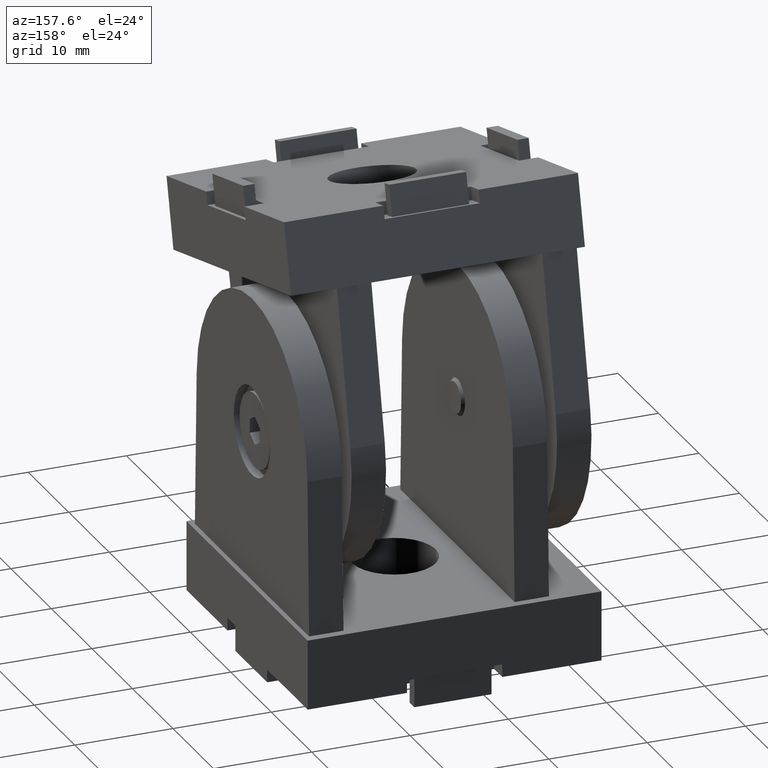
[diagram: clean part render]
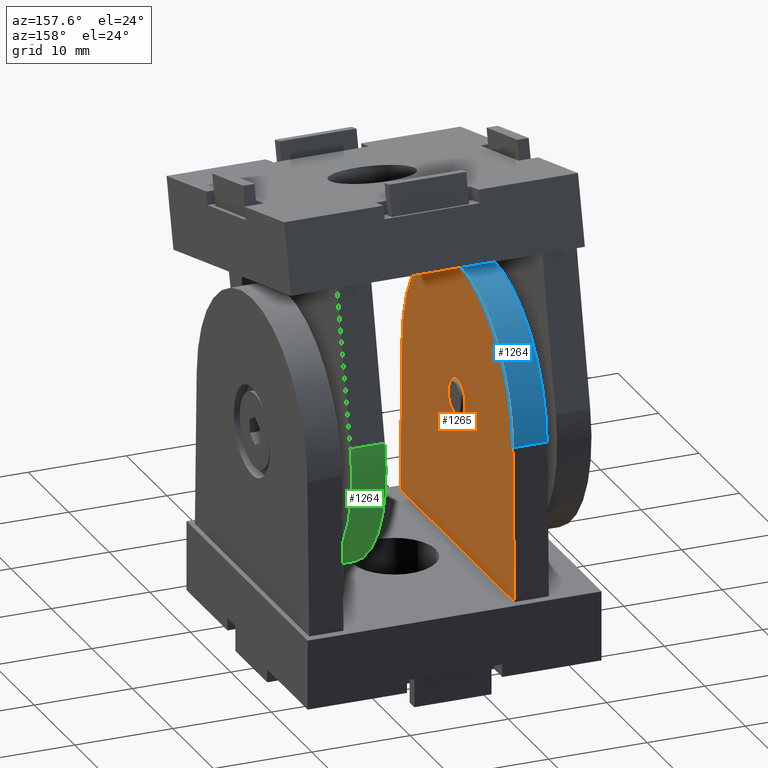
[diagram: same view with three faces highlighted in distinct colors, each labeled with its STEP entity id]
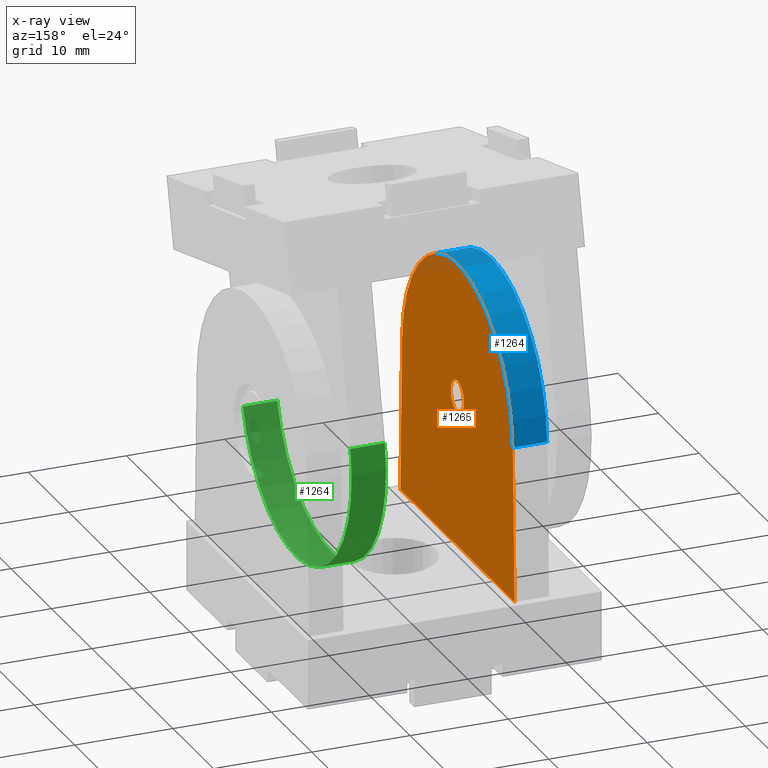
[diagram: x-ray of the same camera — body ghosted, the three highlighted faces saturated]
A machine part, auxiliary view with three faces highlighted in distinct colors.
The next image is the same camera in x-ray (body ghosted, the three faces saturated) — at least one of them is partly hidden behind the body in this view.
Their STEP definitions:

[orange] entity #1265 — the highlighted planar face has unit normal (1, 0, -0).
#157=LINE('',#1991,#297);
#161=LINE('',#2000,#301);
#163=LINE('',#2006,#303);
#297=VECTOR('',#1623,15.7054130795723);
#301=VECTOR('',#1629,15.7054130795723);
#303=VECTOR('',#1639,28.2);
#346=FACE_BOUND('',#494,.T.);
#408=FACE_OUTER_BOUND('',#493,.T.);
#493=EDGE_LOOP('',(#1044,#1045,#1046,#1047));
#494=EDGE_LOOP('',(#1048));
#532=CIRCLE('',#1302,1.621);
#538=CIRCLE('',#1353,13.675);
#551=VERTEX_POINT('',#1743);
#636=VERTEX_POINT('',#1988);
#637=VERTEX_POINT('',#1990);
#640=VERTEX_POINT('',#1997);
#641=VERTEX_POINT('',#1999);
#666=EDGE_CURVE('',#551,#551,#532,.T.);
#784=EDGE_CURVE('',#637,#636,#157,.T.);
#788=EDGE_CURVE('',#641,#640,#161,.T.);
#791=EDGE_CURVE('',#636,#641,#538,.T.);
#792=EDGE_CURVE('',#637,#640,#163,.T.);
#1044=ORIENTED_EDGE('',*,*,#791,.T.);
#1045=ORIENTED_EDGE('',*,*,#788,.T.);
#1046=ORIENTED_EDGE('',*,*,#792,.F.);
#1047=ORIENTED_EDGE('',*,*,#784,.T.);
#1048=ORIENTED_EDGE('',*,*,#666,.T.);
#1199=PLANE('',#1354);
#1265=ADVANCED_FACE('',(#408,#346),#1199,.T.);
#1302=AXIS2_PLACEMENT_3D('',#1744,#1414,#1415);
#1353=AXIS2_PLACEMENT_3D('',#2004,#1635,#1636);
#1354=AXIS2_PLACEMENT_3D('',#2005,#1637,#1638);
#1414=DIRECTION('center_axis',(-1.,0.,0.));
#1415=DIRECTION('ref_axis',(0.,-1.,0.));
#1623=DIRECTION('',(0.,-0.0273873434676063,0.999624896357523));
#1629=DIRECTION('',(0.,-0.0273873434676063,-0.999624896357523));
#1635=DIRECTION('center_axis',(1.,0.,0.));
#1636=DIRECTION('ref_axis',(0.,0.999624896357522,0.0273873434676064));
#1637=DIRECTION('center_axis',(1.,0.,0.));
#1638=DIRECTION('ref_axis',(0.,0.,-1.));
#1639=DIRECTION('',(0.,-1.,0.));
#1743=CARTESIAN_POINT('',(-6.45,1.621,22.425));
#1744=CARTESIAN_POINT('Origin',(-6.45,0.,22.425));
#1988=CARTESIAN_POINT('',(-6.45,13.6698704576891,22.7995219219195));
#1990=CARTESIAN_POINT('',(-6.45,14.1,7.1));
#1991=CARTESIAN_POINT('',(-6.45,14.1,7.1));
#1997=CARTESIAN_POINT('',(-6.45,-14.1,7.1));
#1999=CARTESIAN_POINT('',(-6.45,-13.6698704576891,22.7995219219195));
#2000=CARTESIAN_POINT('',(-6.45,-13.6698704576891,22.7995219219195));
#2004=CARTESIAN_POINT('Origin',(-6.45,0.,22.425));
#2005=CARTESIAN_POINT('Origin',(-6.45,4.01417627230578E-15,18.1896177973791));
#2006=CARTESIAN_POINT('',(-6.45,2.00708813615289E-15,7.1));

[blue] entity #1264 — the highlighted cylindrical surface (partial cylindrical patch) has radius 13.675 mm, axis along (1, 0, -0).
#156=LINE('',#1989,#296);
#162=LINE('',#2001,#302);
#296=VECTOR('',#1622,3.5);
#302=VECTOR('',#1630,3.5);
#329=CYLINDRICAL_SURFACE('',#1351,13.675);
#407=FACE_OUTER_BOUND('',#492,.T.);
#492=EDGE_LOOP('',(#1040,#1041,#1042,#1043));
#537=CIRCLE('',#1352,13.675);
#538=CIRCLE('',#1353,13.675);
#635=VERTEX_POINT('',#1986);
#636=VERTEX_POINT('',#1988);
#638=VERTEX_POINT('',#1994);
#641=VERTEX_POINT('',#1999);
#783=EDGE_CURVE('',#635,#636,#156,.T.);
#789=EDGE_CURVE('',#638,#641,#162,.T.);
#790=EDGE_CURVE('',#635,#638,#537,.T.);
#791=EDGE_CURVE('',#636,#641,#538,.T.);
#1040=ORIENTED_EDGE('',*,*,#790,.T.);
#1041=ORIENTED_EDGE('',*,*,#789,.T.);
#1042=ORIENTED_EDGE('',*,*,#791,.F.);
#1043=ORIENTED_EDGE('',*,*,#783,.F.);
#1264=ADVANCED_FACE('',(#407),#329,.T.);
#1351=AXIS2_PLACEMENT_3D('',#2002,#1631,#1632);
#1352=AXIS2_PLACEMENT_3D('',#2003,#1633,#1634);
#1353=AXIS2_PLACEMENT_3D('',#2004,#1635,#1636);
#1622=DIRECTION('',(1.,0.,0.));
#1630=DIRECTION('',(1.,0.,0.));
#1631=DIRECTION('center_axis',(1.,0.,0.));
#1632=DIRECTION('ref_axis',(0.,0.999624896357522,0.0273873434676064));
#1633=DIRECTION('center_axis',(1.,0.,0.));
#1634=DIRECTION('ref_axis',(0.,0.999624896357522,0.0273873434676064));
#1635=DIRECTION('center_axis',(1.,0.,0.));
#1636=DIRECTION('ref_axis',(0.,0.999624896357522,0.0273873434676064));
#1986=CARTESIAN_POINT('',(-9.95,13.6698704576891,22.7995219219195));
#1988=CARTESIAN_POINT('',(-6.45,13.6698704576891,22.7995219219195));
#1989=CARTESIAN_POINT('',(-9.95,13.6698704576891,22.7995219219195));
#1994=CARTESIAN_POINT('',(-9.95,-13.6698704576891,22.7995219219195));
#1999=CARTESIAN_POINT('',(-6.45,-13.6698704576891,22.7995219219195));
#2001=CARTESIAN_POINT('',(-9.95,-13.6698704576891,22.7995219219195));
#2002=CARTESIAN_POINT('Origin',(-9.95,0.,22.425));
#2003=CARTESIAN_POINT('Origin',(-9.95,0.,22.425));
#2004=CARTESIAN_POINT('Origin',(-6.45,0.,22.425));

[green] entity #1264 — the highlighted cylindrical surface (partial cylindrical patch) has radius 13.675 mm, axis along (-1, -0, 0).
#156=LINE('',#1989,#296);
#162=LINE('',#2001,#302);
#296=VECTOR('',#1622,3.5);
#302=VECTOR('',#1630,3.5);
#329=CYLINDRICAL_SURFACE('',#1351,13.675);
#407=FACE_OUTER_BOUND('',#492,.T.);
#492=EDGE_LOOP('',(#1040,#1041,#1042,#1043));
#537=CIRCLE('',#1352,13.675);
#538=CIRCLE('',#1353,13.675);
#635=VERTEX_POINT('',#1986);
#636=VERTEX_POINT('',#1988);
#638=VERTEX_POINT('',#1994);
#641=VERTEX_POINT('',#1999);
#783=EDGE_CURVE('',#635,#636,#156,.T.);
#789=EDGE_CURVE('',#638,#641,#162,.T.);
#790=EDGE_CURVE('',#635,#638,#537,.T.);
#791=EDGE_CURVE('',#636,#641,#538,.T.);
#1040=ORIENTED_EDGE('',*,*,#790,.T.);
#1041=ORIENTED_EDGE('',*,*,#789,.T.);
#1042=ORIENTED_EDGE('',*,*,#791,.F.);
#1043=ORIENTED_EDGE('',*,*,#783,.F.);
#1264=ADVANCED_FACE('',(#407),#329,.T.);
#1351=AXIS2_PLACEMENT_3D('',#2002,#1631,#1632);
#1352=AXIS2_PLACEMENT_3D('',#2003,#1633,#1634);
#1353=AXIS2_PLACEMENT_3D('',#2004,#1635,#1636);
#1622=DIRECTION('',(1.,0.,0.));
#1630=DIRECTION('',(1.,0.,0.));
#1631=DIRECTION('center_axis',(1.,0.,0.));
#1632=DIRECTION('ref_axis',(0.,0.999624896357522,0.0273873434676064));
#1633=DIRECTION('center_axis',(1.,0.,0.));
#1634=DIRECTION('ref_axis',(0.,0.999624896357522,0.0273873434676064));
#1635=DIRECTION('center_axis',(1.,0.,0.));
#1636=DIRECTION('ref_axis',(0.,0.999624896357522,0.0273873434676064));
#1986=CARTESIAN_POINT('',(-9.95,13.6698704576891,22.7995219219195));
#1988=CARTESIAN_POINT('',(-6.45,13.6698704576891,22.7995219219195));
#1989=CARTESIAN_POINT('',(-9.95,13.6698704576891,22.7995219219195));
#1994=CARTESIAN_POINT('',(-9.95,-13.6698704576891,22.7995219219195));
#1999=CARTESIAN_POINT('',(-6.45,-13.6698704576891,22.7995219219195));
#2001=CARTESIAN_POINT('',(-9.95,-13.6698704576891,22.7995219219195));
#2002=CARTESIAN_POINT('Origin',(-9.95,0.,22.425));
#2003=CARTESIAN_POINT('Origin',(-9.95,0.,22.425));
#2004=CARTESIAN_POINT('Origin',(-6.45,0.,22.425));